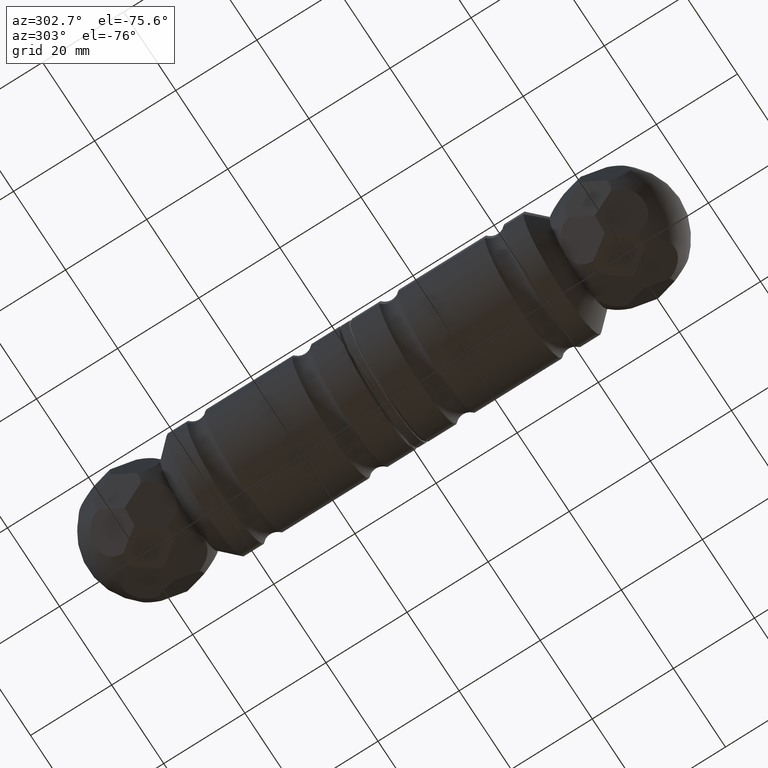
[diagram: clean part render]
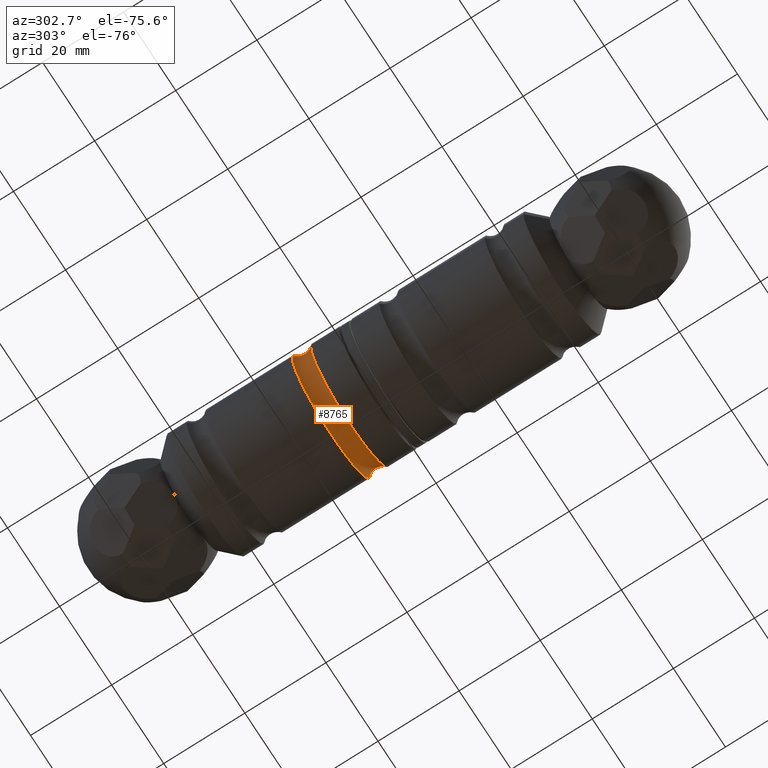
[diagram: same view with one face highlighted and labeled with its STEP entity id]
A machine part, auxiliary view. The second image highlights one B-rep face of the part: STEP entity #8765.
In plain terms, the highlighted toroidal blend (fillet) surface has major radius 17.0312 mm and minor (blend) radius 3.0313 mm.
Its self-contained STEP definition (entity closure, byte-faithful):
#68 = EDGE_CURVE ( 'NONE', #9099, #9099, #5464, .T. ) ;
#979 = DIRECTION ( 'NONE',  ( 1.000000000000000000, 6.278969203164064121E-18, 0.000000000000000000 ) ) ;
#2386 = VERTEX_POINT ( 'NONE', #8663 ) ;
#2836 = DIRECTION ( 'NONE',  ( 6.278969203164064121E-18, -1.000000000000000000, -0.000000000000000000 ) ) ;
#2847 = EDGE_CURVE ( 'NONE', #2386, #2386, #5754, .T. ) ;
#4449 = FACE_OUTER_BOUND ( 'NONE', #4821, .T. ) ;
#4461 = CARTESIAN_POINT ( 'NONE',  ( 15.00000000000000178, 7.500000000000000000, 0.000000000000000000 ) ) ;
#4821 = EDGE_LOOP ( 'NONE', ( #9701 ) ) ;
#5464 = CIRCLE ( 'NONE', #10123, 15.00000000000000178 ) ;
#5754 = CIRCLE ( 'NONE', #11848, 15.00000000000000000 ) ;
#7076 = DIRECTION ( 'NONE',  ( 6.278969203164064121E-18, -1.000000000000000000, -0.000000000000000000 ) ) ;
#7170 = CARTESIAN_POINT ( 'NONE',  ( 0.000000000000000000, 9.750000000000001776, 0.000000000000000000 ) ) ;
#8141 = DIRECTION ( 'NONE',  ( 1.000000000000000000, 0.000000000000000000, 0.000000000000000000 ) ) ;
#8400 = AXIS2_PLACEMENT_3D ( 'NONE', #7170, #10406, #979 ) ;
#8663 = CARTESIAN_POINT ( 'NONE',  ( 15.00000000000000000, 11.99999999999999645, 0.000000000000000000 ) ) ;
#8765 = ADVANCED_FACE ( 'NONE', ( #11948, #4449 ), #12267, .F. ) ;
#9099 = VERTEX_POINT ( 'NONE', #4461 ) ;
#9701 = ORIENTED_EDGE ( 'NONE', *, *, #68, .F. ) ;
#10123 = AXIS2_PLACEMENT_3D ( 'NONE', #13176, #2836, #11225 ) ;
#10175 = CARTESIAN_POINT ( 'NONE',  ( -7.534763043796792204E-17, 11.99999999999999645, 0.000000000000000000 ) ) ;
#10406 = DIRECTION ( 'NONE',  ( 6.278969203164064121E-18, -1.000000000000000000, -0.000000000000000000 ) ) ;
#11225 = DIRECTION ( 'NONE',  ( 1.000000000000000000, 0.000000000000000000, 0.000000000000000000 ) ) ;
#11817 = EDGE_LOOP ( 'NONE', ( #12356 ) ) ;
#11848 = AXIS2_PLACEMENT_3D ( 'NONE', #10175, #7076, #8141 ) ;
#11948 = FACE_OUTER_BOUND ( 'NONE', #11817, .T. ) ;
#12267 = TOROIDAL_SURFACE ( 'NONE', #8400, 17.03125000000000000, 3.031250000000000888 ) ;
#12356 = ORIENTED_EDGE ( 'NONE', *, *, #2847, .T. ) ;
#13176 = CARTESIAN_POINT ( 'NONE',  ( -4.709226902373187720E-17, 7.500000000000000000, 0.000000000000000000 ) ) ;